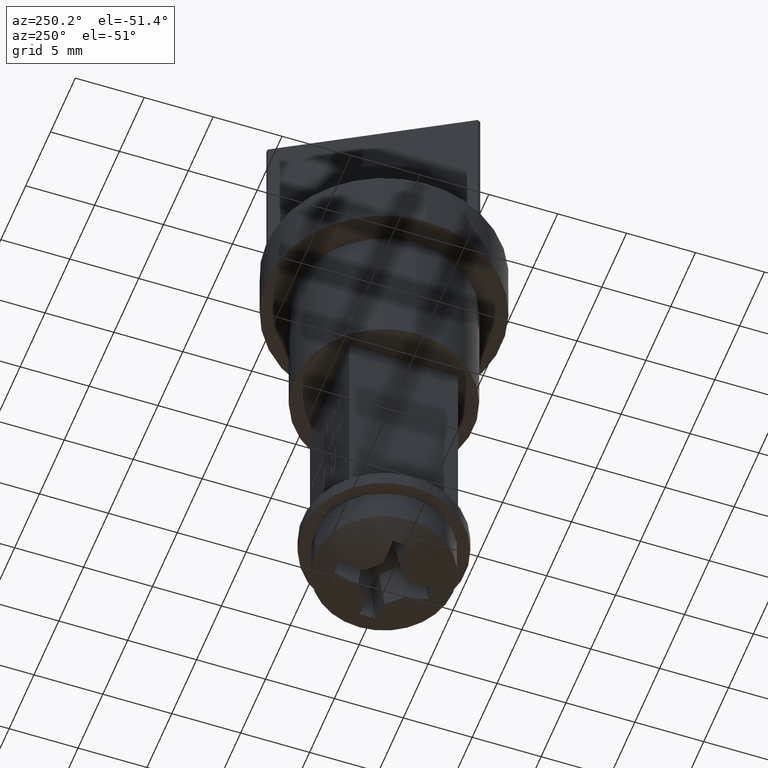
[diagram: clean part render]
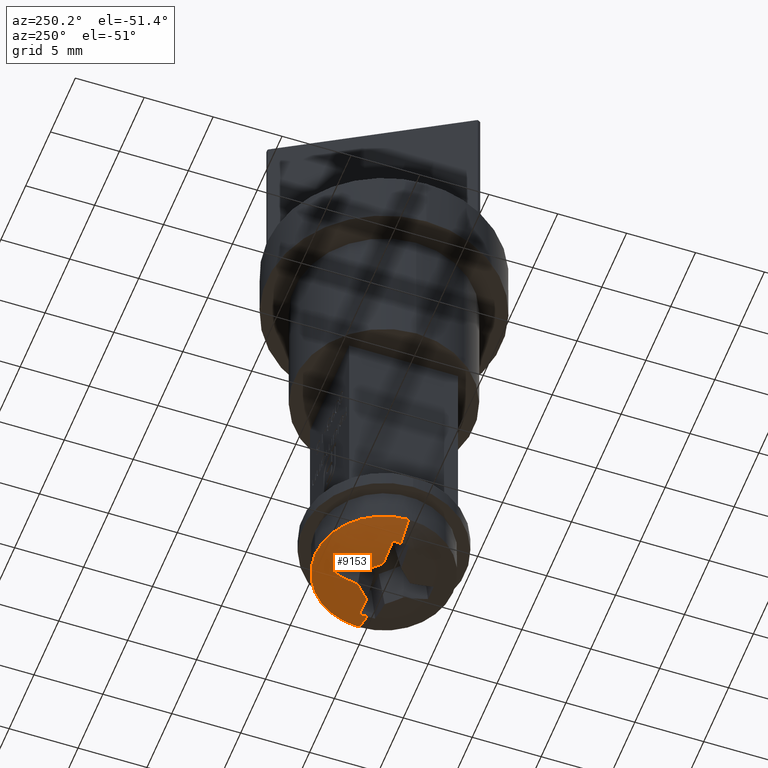
[diagram: same view with one face highlighted and labeled with its STEP entity id]
A machine part, auxiliary view. The second image highlights one B-rep face of the part: STEP entity #9153.
In plain terms, the highlighted spherical surface has radius 10.2654 mm.
Its self-contained STEP definition (entity closure, byte-faithful):
#107 = CARTESIAN_POINT ( 'NONE',  ( -0.5701719969406154886, 7.305490852062484386, -3.395171996940615777 ) ) ;
#275 = DIRECTION ( 'NONE',  ( 0.000000000000000000, 0.000000000000000000, 1.000000000000000000 ) ) ;
#833 = CIRCLE ( 'NONE', #9558, 10.26538461538461355 ) ;
#898 = EDGE_CURVE ( 'NONE', #2514, #6156, #11065, .T. ) ;
#1002 = ORIENTED_EDGE ( 'NONE', *, *, #8277, .T. ) ;
#1051 = CARTESIAN_POINT ( 'NONE',  ( 2.577628094797648881E-15, 6.600000000000001421, -4.999999999999998224 ) ) ;
#1303 = CARTESIAN_POINT ( 'NONE',  ( 1.663576680841847288, 7.743595506892251734, -0.6474216679610731440 ) ) ;
#1325 = DIRECTION ( 'NONE',  ( -0.000000000000000000, 1.000000000000000000, -0.000000000000000000 ) ) ;
#1825 = AXIS2_PLACEMENT_3D ( 'NONE', #13246, #14275, #8208 ) ;
#1915 = EDGE_CURVE ( 'NONE', #12429, #13517, #13639, .T. ) ;
#1935 = EDGE_CURVE ( 'NONE', #11248, #11009, #11905, .T. ) ;
#1942 = AXIS2_PLACEMENT_3D ( 'NONE', #5622, #11972, #13152 ) ;
#2138 = CIRCLE ( 'NONE', #6472, 10.20434218995872655 ) ;
#2210 = DIRECTION ( 'NONE',  ( 0.1736481776669307475, 0.9848077530122079093, 0.000000000000000000 ) ) ;
#2265 = DIRECTION ( 'NONE',  ( -0.9848077530122080203, -0.1736481776669307198, -1.170115841420716727E-16 ) ) ;
#2458 = EDGE_CURVE ( 'NONE', #8297, #7925, #13450, .T. ) ;
#2514 = VERTEX_POINT ( 'NONE', #12698 ) ;
#2532 = ORIENTED_EDGE ( 'NONE', *, *, #1915, .T. ) ;
#2651 = EDGE_CURVE ( 'NONE', #6156, #8297, #7159, .T. ) ;
#2682 = DIRECTION ( 'NONE',  ( 0.000000000000000000, 0.000000000000000000, 1.000000000000000000 ) ) ;
#2788 = AXIS2_PLACEMENT_3D ( 'NONE', #6425, #7471, #7531 ) ;
#2819 = AXIS2_PLACEMENT_3D ( 'NONE', #16014, #2265, #4799 ) ;
#2858 = AXIS2_PLACEMENT_3D ( 'NONE', #13561, #4902, #2210 ) ;
#3325 = DIRECTION ( 'NONE',  ( 0.1736481776669306920, 0.9848077530122080203, 0.000000000000000000 ) ) ;
#3514 = DIRECTION ( 'NONE',  ( 0.1736481776669307475, -0.9848077530122079093, 0.000000000000000000 ) ) ;
#3647 = AXIS2_PLACEMENT_3D ( 'NONE', #13231, #9615, #4617 ) ;
#3759 = AXIS2_PLACEMENT_3D ( 'NONE', #7254, #7080, #3514 ) ;
#4254 = VERTEX_POINT ( 'NONE', #4828 ) ;
#4617 = DIRECTION ( 'NONE',  ( 0.000000000000000000, 0.000000000000000000, 1.000000000000000000 ) ) ;
#4799 = DIRECTION ( 'NONE',  ( 0.1736481776669306920, -0.9848077530122080203, 0.000000000000000000 ) ) ;
#4828 = CARTESIAN_POINT ( 'NONE',  ( -0.6474216679610735881, 7.743595506892252622, -1.663576680841847510 ) ) ;
#4902 = DIRECTION ( 'NONE',  ( 0.9848077530122081313, -0.1736481776669307475, 0.000000000000000000 ) ) ;
#5185 = VERTEX_POINT ( 'NONE', #14796 ) ;
#5314 = DIRECTION ( 'NONE',  ( 1.000000000000000000, 0.000000000000000000, 0.000000000000000000 ) ) ;
#5407 = CIRCLE ( 'NONE', #12809, 4.999999999999998224 ) ;
#5622 = CARTESIAN_POINT ( 'NONE',  ( 1.965304695223972746E-15, -2.365384615384612754, 0.000000000000000000 ) ) ;
#5783 = CARTESIAN_POINT ( 'NONE',  ( 3.395171996940614889, 7.305490852062486162, -0.5701719969406157107 ) ) ;
#5907 = ORIENTED_EDGE ( 'NONE', *, *, #13670, .T. ) ;
#6156 = VERTEX_POINT ( 'NONE', #1303 ) ;
#6357 = DIRECTION ( 'NONE',  ( -0.7071067811865475727, 0.000000000000000000, 0.7071067811865475727 ) ) ;
#6411 = CARTESIAN_POINT ( 'NONE',  ( -1.663576680841849065, 7.743595506892254399, -0.6474216679610728109 ) ) ;
#6425 = CARTESIAN_POINT ( 'NONE',  ( -0.1017453381872148177, -2.340012990106731916, 0.1017453381872167745 ) ) ;
#6472 = AXIS2_PLACEMENT_3D ( 'NONE', #10896, #10837, #3325 ) ;
#6744 = ORIENTED_EDGE ( 'NONE', *, *, #2458, .T. ) ;
#7080 = DIRECTION ( 'NONE',  ( -0.9848077530122081313, -0.1736481776669307475, 0.000000000000000000 ) ) ;
#7124 = VERTEX_POINT ( 'NONE', #107 ) ;
#7159 = CIRCLE ( 'NONE', #10474, 10.20434218995872833 ) ;
#7223 = EDGE_CURVE ( 'NONE', #7124, #5185, #14314, .T. ) ;
#7254 = CARTESIAN_POINT ( 'NONE',  ( -1.638977927651855016, -2.654380644815282242, 0.000000000000000000 ) ) ;
#7471 = DIRECTION ( 'NONE',  ( 0.6963642403200189790, -0.1736481776669307198, -0.6963642403200189790 ) ) ;
#7515 = CIRCLE ( 'NONE', #2819, 10.20434218995873010 ) ;
#7531 = DIRECTION ( 'NONE',  ( -0.7071067811865475727, 0.000000000000000000, -0.7071067811865475727 ) ) ;
#7729 = DIRECTION ( 'NONE',  ( -0.6963642403200189790, -0.1736481776669307198, -0.6963642403200189790 ) ) ;
#7925 = VERTEX_POINT ( 'NONE', #9730 ) ;
#8123 = ORIENTED_EDGE ( 'NONE', *, *, #7223, .T. ) ;
#8208 = DIRECTION ( 'NONE',  ( 0.000000000000000000, 0.9848077530122079093, -0.1736481776669307475 ) ) ;
#8277 = EDGE_CURVE ( 'NONE', #5185, #2514, #2138, .T. ) ;
#8297 = VERTEX_POINT ( 'NONE', #5783 ) ;
#8542 = ORIENTED_EDGE ( 'NONE', *, *, #898, .T. ) ;
#8847 = CARTESIAN_POINT ( 'NONE',  ( 1.965304695223972746E-15, 6.600000000000001421, 0.000000000000000000 ) ) ;
#8927 = DIRECTION ( 'NONE',  ( 0.000000000000000000, 0.9848077530122080203, -0.1736481776669307198 ) ) ;
#9153 = ADVANCED_FACE ( 'NONE', ( #13671 ), #15613, .T. ) ;
#9427 = DIRECTION ( 'NONE',  ( 0.000000000000000000, 0.9848077530122080203, -0.1736481776669306920 ) ) ;
#9558 = AXIS2_PLACEMENT_3D ( 'NONE', #12841, #275, #5314 ) ;
#9615 = DIRECTION ( 'NONE',  ( -0.000000000000000000, 1.000000000000000000, -0.000000000000000000 ) ) ;
#9730 = CARTESIAN_POINT ( 'NONE',  ( 3.397960717812313458, 7.321306474042134305, 0.000000000000000000 ) ) ;
#10134 = DIRECTION ( 'NONE',  ( 1.000000000000000000, 0.000000000000000000, 0.000000000000000000 ) ) ;
#10176 = DIRECTION ( 'NONE',  ( 0.000000000000000000, 0.000000000000000000, -1.000000000000000000 ) ) ;
#10406 = EDGE_CURVE ( 'NONE', #13375, #11377, #14043, .T. ) ;
#10474 = AXIS2_PLACEMENT_3D ( 'NONE', #11576, #12767, #8927 ) ;
#10604 = ORIENTED_EDGE ( 'NONE', *, *, #10406, .T. ) ;
#10782 = DIRECTION ( 'NONE',  ( 0.000000000000000000, -0.1736481776669307198, -0.9848077530122080203 ) ) ;
#10837 = DIRECTION ( 'NONE',  ( 0.9848077530122080203, -0.1736481776669307198, 1.170115841420716727E-16 ) ) ;
#10896 = CARTESIAN_POINT ( 'NONE',  ( -1.100837899208240378, -2.171277192367773612, -1.307979004795567128E-16 ) ) ;
#10959 = EDGE_CURVE ( 'NONE', #11009, #4254, #14408, .T. ) ;
#11009 = VERTEX_POINT ( 'NONE', #6411 ) ;
#11065 = CIRCLE ( 'NONE', #2788, 10.26434476012571295 ) ;
#11196 = ORIENTED_EDGE ( 'NONE', *, *, #14658, .T. ) ;
#11248 = VERTEX_POINT ( 'NONE', #16104 ) ;
#11377 = VERTEX_POINT ( 'NONE', #1051 ) ;
#11434 = CARTESIAN_POINT ( 'NONE',  ( 1.965304695223972746E-15, -2.365384615384612754, 0.000000000000000000 ) ) ;
#11576 = CARTESIAN_POINT ( 'NONE',  ( 1.965304695223972746E-15, -2.171277192367774056, 1.100837899208239712 ) ) ;
#11866 = AXIS2_PLACEMENT_3D ( 'NONE', #15757, #10782, #9427 ) ;
#11905 = CIRCLE ( 'NONE', #11866, 10.20434218995872655 ) ;
#11972 = DIRECTION ( 'NONE',  ( 1.224646799147353207E-16, 0.000000000000000000, -1.000000000000000000 ) ) ;
#12116 = CARTESIAN_POINT ( 'NONE',  ( -4.999999999999995559, 6.600000000000001421, -6.123233995736764310E-16 ) ) ;
#12429 = VERTEX_POINT ( 'NONE', #12116 ) ;
#12505 = EDGE_CURVE ( 'NONE', #11377, #12429, #5407, .T. ) ;
#12541 = ORIENTED_EDGE ( 'NONE', *, *, #14304, .F. ) ;
#12582 = AXIS2_PLACEMENT_3D ( 'NONE', #12723, #7729, #6357 ) ;
#12698 = CARTESIAN_POINT ( 'NONE',  ( 0.6474216679610725889, 7.743595506892253511, -1.663576680841848177 ) ) ;
#12723 = CARTESIAN_POINT ( 'NONE',  ( 0.1017453381872166773, -2.340012990106732360, 0.1017453381872147067 ) ) ;
#12767 = DIRECTION ( 'NONE',  ( 0.000000000000000000, -0.1736481776669307475, -0.9848077530122081313 ) ) ;
#12809 = AXIS2_PLACEMENT_3D ( 'NONE', #8847, #1325, #2682 ) ;
#12841 = CARTESIAN_POINT ( 'NONE',  ( 1.965304695223972746E-15, -2.365384615384612754, 0.000000000000000000 ) ) ;
#13152 = DIRECTION ( 'NONE',  ( -1.000000000000000000, 0.000000000000000000, -1.224646799147353454E-16 ) ) ;
#13231 = CARTESIAN_POINT ( 'NONE',  ( 1.965304695223972746E-15, 6.600000000000001421, 0.000000000000000000 ) ) ;
#13246 = CARTESIAN_POINT ( 'NONE',  ( 1.965304695223972746E-15, -2.654380644815282242, -1.638977927651854793 ) ) ;
#13375 = VERTEX_POINT ( 'NONE', #14858 ) ;
#13450 = CIRCLE ( 'NONE', #2858, 10.12957817233365709 ) ;
#13517 = VERTEX_POINT ( 'NONE', #15508 ) ;
#13561 = CARTESIAN_POINT ( 'NONE',  ( 1.638977927651854571, -2.654380644815281798, 0.000000000000000000 ) ) ;
#13639 = CIRCLE ( 'NONE', #1942, 10.26538461538461355 ) ;
#13670 = EDGE_CURVE ( 'NONE', #13517, #11248, #14968, .T. ) ;
#13671 = FACE_OUTER_BOUND ( 'NONE', #15183, .T. ) ;
#13818 = AXIS2_PLACEMENT_3D ( 'NONE', #11434, #10176, #10134 ) ;
#14043 = CIRCLE ( 'NONE', #3647, 4.999999999999998224 ) ;
#14212 = ORIENTED_EDGE ( 'NONE', *, *, #1935, .T. ) ;
#14275 = DIRECTION ( 'NONE',  ( 0.000000000000000000, -0.1736481776669307475, -0.9848077530122081313 ) ) ;
#14304 = EDGE_CURVE ( 'NONE', #13375, #7925, #833, .T. ) ;
#14314 = CIRCLE ( 'NONE', #1825, 10.12957817233365709 ) ;
#14408 = CIRCLE ( 'NONE', #12582, 10.26434476012571295 ) ;
#14591 = ORIENTED_EDGE ( 'NONE', *, *, #12505, .T. ) ;
#14658 = EDGE_CURVE ( 'NONE', #4254, #7124, #7515, .T. ) ;
#14796 = CARTESIAN_POINT ( 'NONE',  ( 0.5701719969406150446, 7.305490852062482610, -3.395171996940615777 ) ) ;
#14858 = CARTESIAN_POINT ( 'NONE',  ( 4.999999999999999112, 6.600000000000001421, 0.000000000000000000 ) ) ;
#14968 = CIRCLE ( 'NONE', #3759, 10.12957817233365709 ) ;
#15183 = EDGE_LOOP ( 'NONE', ( #10604, #14591, #2532, #5907, #14212, #15720, #11196, #8123, #1002, #8542, #15819, #6744, #12541 ) ) ;
#15508 = CARTESIAN_POINT ( 'NONE',  ( -3.397960717812313458, 7.321306474042134305, -4.161301716697294566E-16 ) ) ;
#15613 = SPHERICAL_SURFACE ( 'NONE', #13818, 10.26538461538461355 ) ;
#15720 = ORIENTED_EDGE ( 'NONE', *, *, #10959, .T. ) ;
#15757 = CARTESIAN_POINT ( 'NONE',  ( 1.965304695223972746E-15, -2.171277192367774056, 1.100837899208239934 ) ) ;
#15819 = ORIENTED_EDGE ( 'NONE', *, *, #2651, .T. ) ;
#16014 = CARTESIAN_POINT ( 'NONE',  ( 1.100837899208239268, -2.171277192367774500, 1.307979004795561458E-16 ) ) ;
#16104 = CARTESIAN_POINT ( 'NONE',  ( -3.395171996940615777, 7.305490852062482610, -0.5701719969406150446 ) ) ;